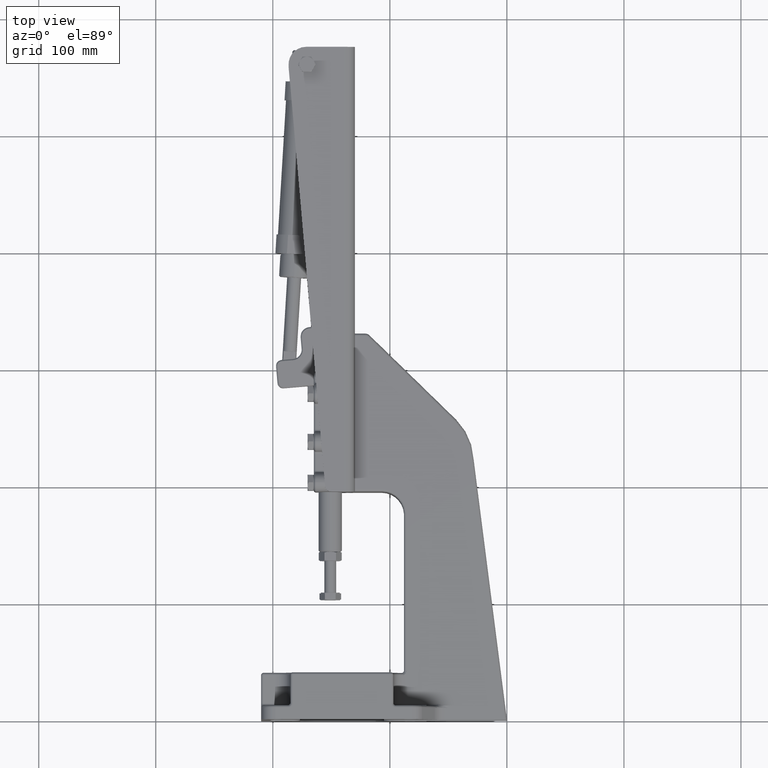
[diagram: clean part render]
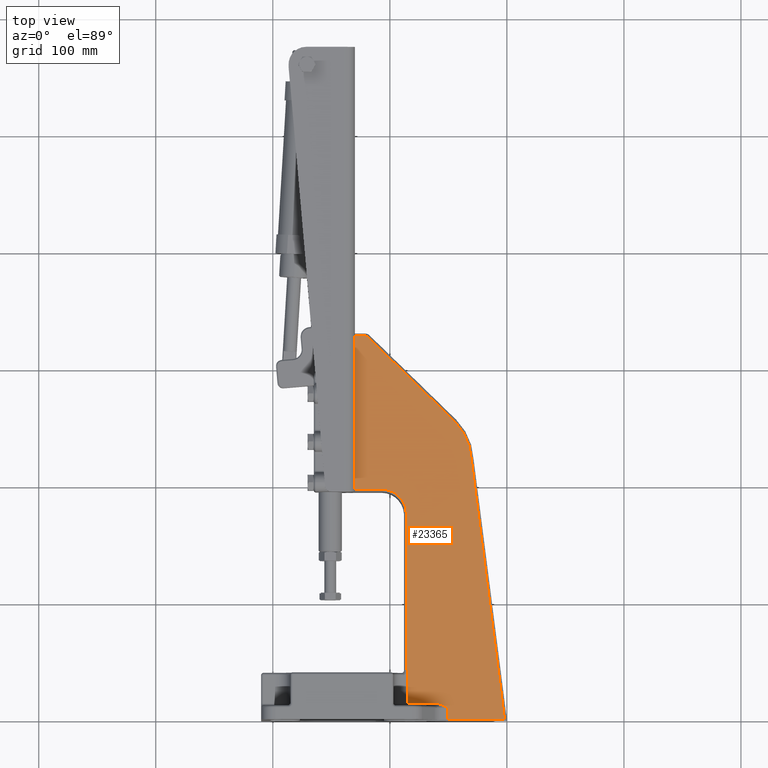
[diagram: same view with one face highlighted and labeled with its STEP entity id]
A machine part, top view. The second image highlights one B-rep face of the part: STEP entity #23365.
In plain terms, the highlighted planar face has unit normal (0, 0, 1).
Its self-contained STEP definition (entity closure, byte-faithful):
#398 = ORIENTED_EDGE ( 'NONE', *, *, #21312, .T. ) ;
#451 = CARTESIAN_POINT ( 'NONE',  ( -88.38031563271405800, 185.8328065265287100, 31.49999999999998600 ) ) ;
#594 = B_SPLINE_CURVE_WITH_KNOTS ( 'NONE', 3,
 ( #6938, #11108, #23663, #52876, #27864, #2917 ),
 .UNSPECIFIED., .F., .F.,
 ( 4, 2, 4 ),
 ( 0.0000000000000000000, 0.5000000000000000000, 1.000000000000000000 ),
 .UNSPECIFIED. ) ;
#636 = CARTESIAN_POINT ( 'NONE',  ( -86.46252350561057700, 180.7584487598640800, 31.49999999999998600 ) ) ;
#706 = CARTESIAN_POINT ( 'NONE',  ( -59.44456735642779000, 13.90085901942617300, 31.49999999999998600 ) ) ;
#888 = CARTESIAN_POINT ( 'NONE',  ( -55.71625794668985100, 12.75631586318144700, 31.49999999999999300 ) ) ;
#1068 = CARTESIAN_POINT ( 'NONE',  ( -54.11739179496922200, 11.96727210287326000, 31.49999999999998600 ) ) ;
#1101 = CARTESIAN_POINT ( 'NONE',  ( -50.78312163512967500, -5.474242942326741000E-007, 31.49999999999998600 ) ) ;
#1249 = CARTESIAN_POINT ( 'NONE',  ( -52.03791835438296700, 10.76950455612899500, 31.49999999999998600 ) ) ;
#1991 = DIRECTION ( 'NONE',  ( -0.1268357536256876400, 0.9919237327547939500, 0.0000000000000000000 ) ) ;
#2376 = ORIENTED_EDGE ( 'NONE', *, *, #39321, .T. ) ;
#2576 = CARTESIAN_POINT ( 'NONE',  ( -30.50762376073685900, 222.8175828215104000, 31.50000000000000000 ) ) ;
#2668 = CARTESIAN_POINT ( 'NONE',  ( -34.18274076805386800, 239.2686576783916100, 31.49999999999998600 ) ) ;
#2841 = CARTESIAN_POINT ( 'NONE',  ( -38.83806947739319100, 247.8758520536658800, 31.49999999999998600 ) ) ;
#2851 = CARTESIAN_POINT ( 'NONE',  ( -104.9698606205004000, 196.9025527644379000, 31.49999999999998600 ) ) ;
#2917 = CARTESIAN_POINT ( 'NONE',  ( -120.9864420214903000, 327.9999989999998900, 31.49999999999998600 ) ) ;
#3004 = ORIENTED_EDGE ( 'NONE', *, *, #8874, .F. ) ;
#3036 = CARTESIAN_POINT ( 'NONE',  ( -102.4507825866127700, 196.4999262708665500, 31.49999999999999300 ) ) ;
#3234 = CARTESIAN_POINT ( 'NONE',  ( -99.05751699953827900, 195.4415632806596100, 31.49999999999999300 ) ) ;
#3409 = CARTESIAN_POINT ( 'NONE',  ( -94.13404974175030300, 192.6270289281130500, 31.49999999999998600 ) ) ;
#3583 = CARTESIAN_POINT ( 'NONE',  ( -91.66205875845709300, 190.3814415711374900, 31.49999999999998600 ) ) ;
#3761 = CARTESIAN_POINT ( 'NONE',  ( -90.04268816004362500, 188.4483330521538300, 31.49999999999997900 ) ) ;
#4045 = VERTEX_POINT ( 'NONE', #35077 ) ;
#4071 = VERTEX_POINT ( 'NONE', #13230 ) ;
#4359 = CARTESIAN_POINT ( 'NONE',  ( -85.91846500000016800, 176.9938469761903000, 31.50000000000004300 ) ) ;
#4507 = VECTOR ( 'NONE', #16183, 1000.000000000000100 ) ;
#4670 = ORIENTED_EDGE ( 'NONE', *, *, #12389, .T. ) ;
#4687 = CARTESIAN_POINT ( 'NONE',  ( -87.69103715117634600, 184.4118875187221800, 31.49999999999998600 ) ) ;
#4855 = CARTESIAN_POINT ( 'NONE',  ( -86.42415945068370300, 180.5935428833564900, 31.49999999999999300 ) ) ;
#4913 = CARTESIAN_POINT ( 'NONE',  ( -58.87441864009971900, 13.80607237012994100, 31.49999999999999300 ) ) ;
#4924 = EDGE_CURVE ( 'NONE', #29632, #36295, #10565, .T. ) ;
#4993 = ORIENTED_EDGE ( 'NONE', *, *, #6628, .T. ) ;
#5109 = CARTESIAN_POINT ( 'NONE',  ( -55.57636201228049100, 12.69297857677240100, 31.49999999999998600 ) ) ;
#5289 = CARTESIAN_POINT ( 'NONE',  ( -53.47742632163903700, 11.61453299476295200, 31.49999999999998600 ) ) ;
#5472 = CARTESIAN_POINT ( 'NONE',  ( -51.96765935913781200, 10.72692442496945200, 31.49999999999998600 ) ) ;
#5494 = EDGE_CURVE ( 'NONE', #15078, #29632, #53026, .T. ) ;
#5642 = LINE ( 'NONE', #13940, #15358 ) ;
#5889 = VECTOR ( 'NONE', #41105, 1000.000000000000000 ) ;
#6415 = AXIS2_PLACEMENT_3D ( 'NONE', #19997, #49220, #24934 ) ;
#6628 = EDGE_CURVE ( 'NONE', #52626, #4071, #21796, .T. ) ;
#6700 = CARTESIAN_POINT ( 'NONE',  ( -30.77996669309368400, 226.5451844586741000, 31.49999999999997900 ) ) ;
#6870 = CARTESIAN_POINT ( 'NONE',  ( -34.58880522346810000, 240.2088924261622400, 31.49999999999998600 ) ) ;
#6875 = VERTEX_POINT ( 'NONE', #21362 ) ;
#6938 = CARTESIAN_POINT ( 'NONE',  ( -118.8943223730449700, 327.1501235025792200, 31.49999999999998600 ) ) ;
#7040 = CARTESIAN_POINT ( 'NONE',  ( -38.91306115180518100, 247.9859817744069800, 31.49999999999998600 ) ) ;
#7048 = CARTESIAN_POINT ( 'NONE',  ( -104.4013110661945900, 196.8373773178682000, 31.49999999999998600 ) ) ;
#7236 = CARTESIAN_POINT ( 'NONE',  ( -102.3924958622901000, 196.4869241028087900, 31.49999999999998600 ) ) ;
#7415 = CARTESIAN_POINT ( 'NONE',  ( -97.34750121827188700, 194.6814693358749700, 31.49999999999999300 ) ) ;
#7583 = CARTESIAN_POINT ( 'NONE',  ( -93.16016035676138100, 191.8188518752507200, 31.49999999999998600 ) ) ;
#7768 = CARTESIAN_POINT ( 'NONE',  ( -91.51737364796405000, 190.2264114669107800, 31.49999999999998600 ) ) ;
#7874 = EDGE_CURVE ( 'NONE', #4045, #52626, #8272, .T. ) ;
#7944 = CARTESIAN_POINT ( 'NONE',  ( -89.77169647377046100, 188.0818119535385900, 31.49999999999998600 ) ) ;
#8272 = LINE ( 'NONE', #35319, #51355 ) ;
#8839 = CARTESIAN_POINT ( 'NONE',  ( -87.44378575905805900, 183.8230177004551000, 31.49999999999999300 ) ) ;
#8874 = EDGE_CURVE ( 'NONE', #26696, #20915, #21152, .T. ) ;
#8891 = VECTOR ( 'NONE', #40052, 1000.000000000000000 ) ;
#9021 = CARTESIAN_POINT ( 'NONE',  ( -86.41322544366433100, 180.5456696870992600, 31.49999999999998600 ) ) ;
#9089 = CARTESIAN_POINT ( 'NONE',  ( -58.28264812224904300, 13.66773750707521300, 31.49999999999999300 ) ) ;
#9283 = CARTESIAN_POINT ( 'NONE',  ( -55.53243887021204700, 12.67288676402348500, 31.49999999999998600 ) ) ;
#9366 = CARTESIAN_POINT ( 'NONE',  ( -129.9185700000002200, 327.9999989999998900, 31.49999999999998600 ) ) ;
#9399 = CARTESIAN_POINT ( 'NONE',  ( -60.78312163512983100, 13.99999795481803700, 31.50000000000001400 ) ) ;
#9449 = CARTESIAN_POINT ( 'NONE',  ( -53.20603969203893500, 11.45989823960556300, 31.49999999999999300 ) ) ;
#9641 = CARTESIAN_POINT ( 'NONE',  ( -51.95083742263322100, 10.71671756264208900, 31.49999999999999300 ) ) ;
#10087 = VECTOR ( 'NONE', #42568, 1000.000000000000000 ) ;
#10565 = LINE ( 'NONE', #41077, #41239 ) ;
#10850 = CARTESIAN_POINT ( 'NONE',  ( -31.45360614003864100, 230.4107589140837400, 31.49999999999998600 ) ) ;
#11033 = CARTESIAN_POINT ( 'NONE',  ( -34.68808404199341300, 240.4319213135783300, 31.49999999999999300 ) ) ;
#11108 = CARTESIAN_POINT ( 'NONE',  ( -119.1729804774537100, 327.4219915539532100, 31.49999999999997900 ) ) ;
#11220 = CARTESIAN_POINT ( 'NONE',  ( -42.53993516127843600, 252.7971291095561000, 31.49999999999999300 ) ) ;
#11233 = CARTESIAN_POINT ( 'NONE',  ( -104.2593213758887600, 196.8190146024975600, 31.49999999999998600 ) ) ;
#11405 = CARTESIAN_POINT ( 'NONE',  ( -100.9666584927304300, 196.1287425003118600, 31.49999999999998600 ) ) ;
#11538 = DIRECTION ( 'NONE',  ( 0.0000000000000000000, 1.000000000000000000, 0.0000000000000000000 ) ) ;
#11578 = CARTESIAN_POINT ( 'NONE',  ( -95.66154019162593200, 193.6881932416238800, 31.49999999999998600 ) ) ;
#11762 = CARTESIAN_POINT ( 'NONE',  ( -92.92293004823943600, 191.6087883893010300, 31.49999999999999300 ) ) ;
#11949 = CARTESIAN_POINT ( 'NONE',  ( -91.48311090379138500, 190.1893075148090300, 31.49999999999999300 ) ) ;
#11977 = LINE ( 'NONE', #24801, #32796 ) ;
#12036 = CARTESIAN_POINT ( 'NONE',  ( -44.66113141188763100, 254.9195539749318900, 31.49999999999998600 ) ) ;
#12120 = CARTESIAN_POINT ( 'NONE',  ( -89.00162783189891500, 186.9095623970606300, 31.49999999999998600 ) ) ;
#12389 = EDGE_CURVE ( 'NONE', #53376, #51322, #28845, .T. ) ;
#13015 = CARTESIAN_POINT ( 'NONE',  ( -87.38711701340501700, 183.6817469526012300, 31.49999999999997900 ) ) ;
#13189 = CARTESIAN_POINT ( 'NONE',  ( -85.98230407433618400, 178.1859267591100600, 31.49999999999998600 ) ) ;
#13230 = CARTESIAN_POINT ( 'NONE',  ( -44.66113141188821300, 254.9195539749313800, 31.50000000000008900 ) ) ;
#13248 = CARTESIAN_POINT ( 'NONE',  ( -58.13954980037708300, 13.63036847381958700, 31.49999999999998600 ) ) ;
#13441 = CARTESIAN_POINT ( 'NONE',  ( -55.02635157944927600, 12.43496562082977500, 31.49999999999998600 ) ) ;
#13622 = CARTESIAN_POINT ( 'NONE',  ( -53.14050858865685700, 11.42221872028601100, 31.49999999999999300 ) ) ;
#13813 = CARTESIAN_POINT ( 'NONE',  ( -51.68668292942905400, 10.55637400269329800, 31.49999999999999300 ) ) ;
#13940 = CARTESIAN_POINT ( 'NONE',  ( -50.78312163512967500, 163.9999992526511800, 31.49999999999998600 ) ) ;
#14284 = VERTEX_POINT ( 'NONE', #47661 ) ;
#15018 = CARTESIAN_POINT ( 'NONE',  ( -31.66427756078523400, 231.3718755733503100, 31.49999999999999300 ) ) ;
#15044 = CARTESIAN_POINT ( 'NONE',  ( -84.50000000000012800, 163.9999992526511800, 31.49999999999998600 ) ) ;
#15078 = VERTEX_POINT ( 'NONE', #37737 ) ;
#15195 = CARTESIAN_POINT ( 'NONE',  ( -34.71884446275029700, 240.5005450276213400, 31.49999999999998600 ) ) ;
#15358 = VECTOR ( 'NONE', #47378, 1000.000000000000000 ) ;
#15367 = CARTESIAN_POINT ( 'NONE',  ( -104.2255229811112100, 196.8145210233014700, 31.50000000000000000 ) ) ;
#15539 = LINE ( 'NONE', #12036, #4507 ) ;
#15557 = CARTESIAN_POINT ( 'NONE',  ( -99.52812064614283800, 195.6275630967207100, 31.49999999999998600 ) ) ;
#15740 = CARTESIAN_POINT ( 'NONE',  ( -95.25168234434748600, 193.4184711958173800, 31.49999999999999300 ) ) ;
#15907 = CARTESIAN_POINT ( 'NONE',  ( -92.86401259846680000, 191.5557713163926200, 31.49999999999997900 ) ) ;
#16032 = DIRECTION ( 'NONE',  ( -0.0000000000000000000, -1.000000000000000000, -0.0000000000000000000 ) ) ;
#16085 = CARTESIAN_POINT ( 'NONE',  ( -91.21381247977629400, 189.8965995376064500, 31.49999999999999300 ) ) ;
#16183 = DIRECTION ( 'NONE',  ( -0.7167081675262685400, 0.6973732161483821000, 0.0000000000000000000 ) ) ;
#16912 = LINE ( 'NONE', #28485, #5889 ) ;
#17028 = CARTESIAN_POINT ( 'NONE',  ( -88.71339724352039000, 186.4211833115745400, 31.49999999999998600 ) ) ;
#17207 = CARTESIAN_POINT ( 'NONE',  ( -87.37089311169121700, 183.6408743160417300, 31.49999999999999300 ) ) ;
#17275 = CARTESIAN_POINT ( 'NONE',  ( -60.22303910024803000, 13.98708472712419700, 31.49999999999998600 ) ) ;
#17456 = CARTESIAN_POINT ( 'NONE',  ( -58.09472336692182600, 13.61837971919435300, 31.49999999999998600 ) ) ;
#17515 = CARTESIAN_POINT ( 'NONE',  ( -125.4525060107454000, 327.9999989999998900, 31.49999999999998600 ) ) ;
#17633 = CARTESIAN_POINT ( 'NONE',  ( -54.48628689090378400, 12.16105416109246700, 31.49999999999998600 ) ) ;
#17810 = CARTESIAN_POINT ( 'NONE',  ( -53.11964820074278000, 11.41019909824185200, 31.49999999999998600 ) ) ;
#17999 = CARTESIAN_POINT ( 'NONE',  ( -50.78312163512966700, 9.999997954310259700, 31.50000000000000700 ) ) ;
#19193 = CARTESIAN_POINT ( 'NONE',  ( -31.71691945093665800, 231.6004029567954200, 31.50000000000000000 ) ) ;
#19376 = CARTESIAN_POINT ( 'NONE',  ( -36.28707981447031700, 243.7551503812986200, 31.49999999999999300 ) ) ;
#19571 = CARTESIAN_POINT ( 'NONE',  ( -103.9035872261635500, 196.7713116605887600, 31.49999999999998600 ) ) ;
#19753 = CARTESIAN_POINT ( 'NONE',  ( -99.17284344505037600, 195.4881745265617500, 31.49999999999998600 ) ) ;
#19918 = ORIENTED_EDGE ( 'NONE', *, *, #5494, .T. ) ;
#19923 = CARTESIAN_POINT ( 'NONE',  ( -95.14994490811433500, 193.3497029954755000, 31.49999999999998600 ) ) ;
#19997 = CARTESIAN_POINT ( 'NONE',  ( -129.9185700000002200, -4.946975120000002900E-007, 31.49999999999998600 ) ) ;
#20110 = CARTESIAN_POINT ( 'NONE',  ( -92.85000754647687400, 191.5431187681564300, 31.49999999999999300 ) ) ;
#20297 = CARTESIAN_POINT ( 'NONE',  ( -90.42854775053533000, 188.9554033767148800, 31.49999999999999300 ) ) ;
#20551 = ORIENTED_EDGE ( 'NONE', *, *, #50192, .F. ) ;
#20915 = VERTEX_POINT ( 'NONE', #47583 ) ;
#21152 = LINE ( 'NONE', #17515, #10087 ) ;
#21215 = CARTESIAN_POINT ( 'NONE',  ( -88.64638074151869800, 186.3038436347413600, 31.49999999999997900 ) ) ;
#21312 = EDGE_CURVE ( 'NONE', #27379, #4045, #31553, .T. ) ;
#21362 = CARTESIAN_POINT ( 'NONE',  ( -50.78312163512966700, 9.999997954310259700, 31.50000000000000700 ) ) ;
#21402 = CARTESIAN_POINT ( 'NONE',  ( -86.89712702797172000, 182.3561701120257200, 31.49999999999998600 ) ) ;
#21468 = CARTESIAN_POINT ( 'NONE',  ( -59.62068445252880600, 13.92507228816644700, 31.49999999999998600 ) ) ;
#21646 = CARTESIAN_POINT ( 'NONE',  ( -57.05399305825605400, 13.30515311938243700, 31.49999999999998600 ) ) ;
#21796 = B_SPLINE_CURVE_WITH_KNOTS ( 'NONE', 3,
 ( #2576, #31648, #6700, #35800, #10850, #40031, #15018, #44258, #19193, #48430, #23419, #52635, #27610, #2668, #31741, #6870, #35984, #11033, #40210, #15195, #44435, #19376, #48593, #23599, #52806, #27788, #2841, #31929, #7040, #36148, #11220, #40404 ),
 .UNSPECIFIED., .F., .F.,
 ( 4, 1, 1, 1, 1, 1, 2, 2, 1, 1, 1, 1, 1, 1, 2, 2, 1, 1, 1, 1, 1, 2, 2, 4 ),
 ( 0.0000000000000000000, 0.1249999999999906700, 0.1874999999999860100, 0.2187499999999824600, 0.2343749999999806300, 0.2421874999999797700, 0.2460937499999781600, 0.2499999999999765200, 0.3749999999999549200, 0.4374999999999451000, 0.4687499999999402700, 0.4843749999999378800, 0.4921874999999367200, 0.4960937499999359400, 0.4980468749999356100, 0.4999999999999352200, 0.6249999999999065200, 0.6874999999998934200, 0.7187499999998858700, 0.7343749999998813200, 0.7421874999998797600, 0.7460937499998801000, 0.7499999999998803200, 1.000000000000000000 ),
 .UNSPECIFIED. ) ;
#21831 = CARTESIAN_POINT ( 'NONE',  ( -54.35548408248533300, 12.09274501753615300, 31.49999999999997900 ) ) ;
#21922 = ORIENTED_EDGE ( 'NONE', *, *, #4924, .T. ) ;
#22004 = CARTESIAN_POINT ( 'NONE',  ( -52.66292628763182600, 11.14434402765483700, 31.49999999999999300 ) ) ;
#22769 = CARTESIAN_POINT ( 'NONE',  ( -65.58372016529351400, 13.99999795431062000, 31.49999999999998600 ) ) ;
#23273 = CARTESIAN_POINT ( 'NONE',  ( -65.58372016529351400, 196.9996853245614800, 31.49999999999998600 ) ) ;
#23365 = ADVANCED_FACE ( 'NONE', ( #40820 ), #49044, .T. ) ;
#23419 = CARTESIAN_POINT ( 'NONE',  ( -32.09378694438765900, 233.2093155802132600, 31.49999999999999300 ) ) ;
#23599 = CARTESIAN_POINT ( 'NONE',  ( -38.23970381309778300, 246.9774444436328900, 31.49999999999999300 ) ) ;
#23663 = CARTESIAN_POINT ( 'NONE',  ( -119.4957499439265000, 327.6324780557098400, 31.49999999999998600 ) ) ;
#23772 = CARTESIAN_POINT ( 'NONE',  ( -102.9077233258537400, 196.5969182510328000, 31.49999999999999300 ) ) ;
#23956 = CARTESIAN_POINT ( 'NONE',  ( -99.08429647356196300, 195.4524465265681700, 31.49999999999998600 ) ) ;
#24130 = CARTESIAN_POINT ( 'NONE',  ( -95.12576440733926100, 193.3332510517607500, 31.49999999999998600 ) ) ;
#24152 = ORIENTED_EDGE ( 'NONE', *, *, #27970, .T. ) ;
#24265 = VECTOR ( 'NONE', #48283, 1000.000000000000000 ) ;
#24309 = CARTESIAN_POINT ( 'NONE',  ( -92.60494416898109200, 191.3214147352585100, 31.49999999999999300 ) ) ;
#24478 = CARTESIAN_POINT ( 'NONE',  ( -90.12734690523446100, 188.5619290317000300, 31.49999999999999300 ) ) ;
#24801 = CARTESIAN_POINT ( 'NONE',  ( -129.9185700000002200, 262.4998421622804000, 31.49999999999998600 ) ) ;
#24934 = DIRECTION ( 'NONE',  ( 1.000000000000000000, 0.0000000000000000000, 0.0000000000000000000 ) ) ;
#25405 = CARTESIAN_POINT ( 'NONE',  ( -88.62722255358909300, 186.2700480597214900, 31.49999999999998600 ) ) ;
#25588 = CARTESIAN_POINT ( 'NONE',  ( -86.51810367215291800, 180.9887314204491100, 31.49999999999998600 ) ) ;
#25649 = CARTESIAN_POINT ( 'NONE',  ( -59.47580511922501500, 13.90534401843152600, 31.49999999999998600 ) ) ;
#25823 = CARTESIAN_POINT ( 'NONE',  ( -55.91105173329585700, 12.84269546018188600, 31.49999999999998600 ) ) ;
#26011 = CARTESIAN_POINT ( 'NONE',  ( -54.31453030830710600, 12.07121612515951300, 31.49999999999999300 ) ) ;
#26201 = CARTESIAN_POINT ( 'NONE',  ( -52.13060531506344100, 10.82554983576224900, 31.49999999999999300 ) ) ;
#26696 = VERTEX_POINT ( 'NONE', #9366 ) ;
#27233 = ORIENTED_EDGE ( 'NONE', *, *, #27589, .T. ) ;
#27379 = VERTEX_POINT ( 'NONE', #1101 ) ;
#27589 = EDGE_CURVE ( 'NONE', #46732, #20915, #594, .T. ) ;
#27610 = CARTESIAN_POINT ( 'NONE',  ( -33.66864894893106500, 238.0062081464697300, 31.49999999999997900 ) ) ;
#27754 = ORIENTED_EDGE ( 'NONE', *, *, #48120, .T. ) ;
#27788 = CARTESIAN_POINT ( 'NONE',  ( -38.76227013495866200, 247.7641027947098800, 31.49999999999999300 ) ) ;
#27795 = CARTESIAN_POINT ( 'NONE',  ( -106.8190105385982100, 196.9996853245614300, 31.49999999999997200 ) ) ;
#27864 = CARTESIAN_POINT ( 'NONE',  ( -120.5953443302291000, 327.9999286384208400, 31.49999999999998600 ) ) ;
#27970 = EDGE_CURVE ( 'NONE', #6875, #27379, #5642, .T. ) ;
#27980 = CARTESIAN_POINT ( 'NONE',  ( -102.5078208563152900, 196.5125371259715300, 31.49999999999999300 ) ) ;
#28170 = CARTESIAN_POINT ( 'NONE',  ( -99.06322985521555300, 195.4438881270050100, 31.49999999999999300 ) ) ;
#28339 = CARTESIAN_POINT ( 'NONE',  ( -94.71719065603842600, 193.0546290365591300, 31.49999999999999300 ) ) ;
#28485 = CARTESIAN_POINT ( 'NONE',  ( -65.58372016529351400, 41.99999795431143200, 31.49999999999998600 ) ) ;
#28518 = CARTESIAN_POINT ( 'NONE',  ( -91.85694380479903000, 190.5861139759790000, 31.49999999999998600 ) ) ;
#28695 = CARTESIAN_POINT ( 'NONE',  ( -90.05675888981453200, 188.4672985234129200, 31.49999999999998600 ) ) ;
#28845 = LINE ( 'NONE', #22769, #39958 ) ;
#29318 = CARTESIAN_POINT ( 'NONE',  ( -30.50762376073685900, 222.8175828215104000, 31.50000000000000000 ) ) ;
#29598 = CARTESIAN_POINT ( 'NONE',  ( -88.04386401767149600, 185.1858539845882800, 31.49999999999999300 ) ) ;
#29632 = VERTEX_POINT ( 'NONE', #4359 ) ;
#29761 = CARTESIAN_POINT ( 'NONE',  ( -86.43554667870664300, 180.6430528354300400, 31.49999999999997900 ) ) ;
#29829 = CARTESIAN_POINT ( 'NONE',  ( -59.20264846037403600, 13.86513151928377900, 31.49999999999997900 ) ) ;
#30002 = CARTESIAN_POINT ( 'NONE',  ( -55.61839995705329900, 12.71212928034548300, 31.49999999999997900 ) ) ;
#30180 = CARTESIAN_POINT ( 'NONE',  ( -53.82964365068681900, 11.81164436158818500, 31.49999999999998600 ) ) ;
#30353 = CARTESIAN_POINT ( 'NONE',  ( -51.99114985990859600, 10.74116981834974500, 31.49999999999998600 ) ) ;
#30484 = EDGE_CURVE ( 'NONE', #36295, #34092, #16912, .T. ) ;
#30692 = ORIENTED_EDGE ( 'NONE', *, *, #30484, .T. ) ;
#31553 = LINE ( 'NONE', #39847, #41426 ) ;
#31648 = CARTESIAN_POINT ( 'NONE',  ( -30.57534585137883800, 224.3137697636356900, 31.49999999999997900 ) ) ;
#31741 = CARTESIAN_POINT ( 'NONE',  ( -34.45149844394221400, 239.8961096436835900, 31.49999999999999300 ) ) ;
#31929 = CARTESIAN_POINT ( 'NONE',  ( -38.88871161146767000, 247.9502915114952700, 31.49999999999998600 ) ) ;
#31937 = CARTESIAN_POINT ( 'NONE',  ( -104.5907225544151800, 196.8605736515981400, 31.49999999999998600 ) ) ;
#32120 = CARTESIAN_POINT ( 'NONE',  ( -102.4127657072413200, 196.4914660428282800, 31.49999999999999300 ) ) ;
#32300 = CARTESIAN_POINT ( 'NONE',  ( -98.36053913258031400, 195.1577361138733700, 31.49999999999998600 ) ) ;
#32486 = CARTESIAN_POINT ( 'NONE',  ( -93.48035136937528500, 192.0939467845934700, 31.49999999999998600 ) ) ;
#32683 = CARTESIAN_POINT ( 'NONE',  ( -91.56546119200811500, 190.2782334826621300, 31.49999999999998600 ) ) ;
#32796 = VECTOR ( 'NONE', #11538, 1000.000000000000000 ) ;
#32856 = CARTESIAN_POINT ( 'NONE',  ( -90.03666959956865400, 188.4402090491360000, 31.49999999999998600 ) ) ;
#33787 = CARTESIAN_POINT ( 'NONE',  ( -87.52454872235908600, 184.0201071607218900, 31.49999999999998600 ) ) ;
#33853 = CARTESIAN_POINT ( 'NONE',  ( -60.78312163512983100, 13.99999795481803700, 31.50000000000001400 ) ) ;
#33965 = CARTESIAN_POINT ( 'NONE',  ( -86.41660669182871900, 180.5605241251101600, 31.49999999999999300 ) ) ;
#34040 = CARTESIAN_POINT ( 'NONE',  ( -58.48155908842505100, 13.71718068543017600, 31.49999999999999300 ) ) ;
#34092 = VERTEX_POINT ( 'NONE', #35399 ) ;
#34220 = CARTESIAN_POINT ( 'NONE',  ( -55.54831475879701900, 12.68016397513627100, 31.49999999999997900 ) ) ;
#34406 = CARTESIAN_POINT ( 'NONE',  ( -53.29718986693558200, 11.51209089418549800, 31.49999999999999300 ) ) ;
#34576 = CARTESIAN_POINT ( 'NONE',  ( -51.95756923305028600, 10.72080253684419700, 31.49999999999998600 ) ) ;
#35077 = CARTESIAN_POINT ( 'NONE',  ( -2.016284015936750300, -2.571694482071812200E-007, 31.49999999999998600 ) ) ;
#35319 = CARTESIAN_POINT ( 'NONE',  ( -2.016284046309019500, -1.964199273185002100E-008, 31.49999999999998600 ) ) ;
#35399 = CARTESIAN_POINT ( 'NONE',  ( -84.50000000000008500, 41.99999795431099200, 31.49999999999997900 ) ) ;
#35800 = CARTESIAN_POINT ( 'NONE',  ( -31.19900699353851800, 229.1259865966526900, 31.49999999999998600 ) ) ;
#35984 = CARTESIAN_POINT ( 'NONE',  ( -34.65819059862651800, 240.3650480173597300, 31.49999999999998600 ) ) ;
#36148 = CARTESIAN_POINT ( 'NONE',  ( -40.63273055872233600, 250.4988247502830600, 31.49999999999999300 ) ) ;
#36158 = CARTESIAN_POINT ( 'NONE',  ( -104.3066447082897500, 196.8252274566756300, 31.49999999999998600 ) ) ;
#36295 = VERTEX_POINT ( 'NONE', #39404 ) ;
#36342 = CARTESIAN_POINT ( 'NONE',  ( -101.8072710977177000, 196.3549975287543200, 31.49999999999999300 ) ) ;
#36528 = CARTESIAN_POINT ( 'NONE',  ( -96.21525526494660600, 194.0345051999698300, 31.49999999999998600 ) ) ;
#36696 = CARTESIAN_POINT ( 'NONE',  ( -93.00172939384783900, 191.6791659611835700, 31.49999999999998600 ) ) ;
#36873 = CARTESIAN_POINT ( 'NONE',  ( -91.49680996605530900, 190.2041553234072600, 31.49999999999998600 ) ) ;
#37037 = EDGE_CURVE ( 'NONE', #34092, #53376, #53295, .T. ) ;
#37049 = CARTESIAN_POINT ( 'NONE',  ( -89.40287629776422300, 187.5495907435274000, 31.49999999999998600 ) ) ;
#37737 = CARTESIAN_POINT ( 'NONE',  ( -106.8190105385982100, 196.9996853245614300, 31.49999999999997200 ) ) ;
#38002 = CARTESIAN_POINT ( 'NONE',  ( -87.40402459018439200, 183.7241731500048200, 31.49999999999998600 ) ) ;
#38177 = CARTESIAN_POINT ( 'NONE',  ( -86.14585308190758900, 179.3638068275697600, 31.49999999999998600 ) ) ;
#38246 = CARTESIAN_POINT ( 'NONE',  ( -58.18257234157636000, 13.64176658389647500, 31.49999999999999300 ) ) ;
#38429 = CARTESIAN_POINT ( 'NONE',  ( -55.32496576424662700, 12.57754074414742200, 31.50000000000000000 ) ) ;
#38623 = CARTESIAN_POINT ( 'NONE',  ( -53.16020661770441800, 11.43355901124279100, 31.49999999999998600 ) ) ;
#38786 = CARTESIAN_POINT ( 'NONE',  ( -51.94610907809404000, 10.71384774192276800, 31.49999999999998600 ) ) ;
#39278 = CARTESIAN_POINT ( 'NONE',  ( -118.8943223730449700, 327.1501235025792200, 31.49999999999998600 ) ) ;
#39321 = EDGE_CURVE ( 'NONE', #14284, #15078, #46524, .T. ) ;
#39404 = CARTESIAN_POINT ( 'NONE',  ( -85.91846500000011100, 41.99999795431112700, 31.50000000000002800 ) ) ;
#39847 = CARTESIAN_POINT ( 'NONE',  ( -65.58372016529351400, -4.946975120000002900E-007, 31.49999999999998600 ) ) ;
#39958 = VECTOR ( 'NONE', #47813, 1000.000000000000000 ) ;
#40031 = CARTESIAN_POINT ( 'NONE',  ( -31.59217546235813900, 231.0517378849097300, 31.49999999999997900 ) ) ;
#40052 = DIRECTION ( 'NONE',  ( -0.0000000000000000000, -1.000000000000000000, -0.0000000000000000000 ) ) ;
#40210 = CARTESIAN_POINT ( 'NONE',  ( -34.70804786068539000, 240.4764922824838300, 31.49999999999997900 ) ) ;
#40404 = CARTESIAN_POINT ( 'NONE',  ( -44.66113141188821300, 254.9195539749313800, 31.50000000000008900 ) ) ;
#40412 = CARTESIAN_POINT ( 'NONE',  ( -104.2390420576921700, 196.8163223956536300, 31.49999999999998600 ) ) ;
#40584 = CARTESIAN_POINT ( 'NONE',  ( -100.0045347652776800, 195.8046450982812700, 31.49999999999998600 ) ) ;
#40670 = EDGE_LOOP ( 'NONE', ( #2376, #19918, #21922, #30692, #52328, #4670, #27754, #24152, #398, #45129, #4993, #47052, #27233, #3004, #20551 ) ) ;
#40767 = CARTESIAN_POINT ( 'NONE',  ( -95.38778463080103600, 193.5093297898525300, 31.49999999999998600 ) ) ;
#40820 = FACE_OUTER_BOUND ( 'NONE', #40670, .T. ) ;
#40948 = CARTESIAN_POINT ( 'NONE',  ( -92.88363440939728800, 191.5734659496474400, 31.49999999999998600 ) ) ;
#41077 = CARTESIAN_POINT ( 'NONE',  ( -85.91846500000008300, 163.9999992526511800, 31.49999999999998600 ) ) ;
#41105 = DIRECTION ( 'NONE',  ( 1.000000000000000000, 0.0000000000000000000, 0.0000000000000000000 ) ) ;
#41138 = CARTESIAN_POINT ( 'NONE',  ( -91.47741488161112500, 190.1831267805423200, 31.49999999999999300 ) ) ;
#41239 = VECTOR ( 'NONE', #16032, 1000.000000000000000 ) ;
#41426 = VECTOR ( 'NONE', #48071, 1000.000000000000000 ) ;
#42045 = CARTESIAN_POINT ( 'NONE',  ( -88.80826403383508700, 186.5847723234638200, 31.49999999999999300 ) ) ;
#42238 = CARTESIAN_POINT ( 'NONE',  ( -87.37587483425585300, 183.6534485438408800, 31.49999999999999300 ) ) ;
#42305 = CARTESIAN_POINT ( 'NONE',  ( -60.56060548348593600, 13.99998387255141600, 31.49999999999999300 ) ) ;
#42428 = CARTESIAN_POINT ( 'NONE',  ( -85.91846500000016800, 176.9938469761903000, 31.50000000000004300 ) ) ;
#42502 = CARTESIAN_POINT ( 'NONE',  ( -58.11083856826400800, 13.62271024167304000, 31.49999999999998600 ) ) ;
#42568 = DIRECTION ( 'NONE',  ( 1.000000000000000000, -0.0000000000000000000, -0.0000000000000000000 ) ) ;
#42677 = CARTESIAN_POINT ( 'NONE',  ( -54.66797415519516100, 12.25468226614123200, 31.49999999999998600 ) ) ;
#42847 = CARTESIAN_POINT ( 'NONE',  ( -53.12736428420198800, 11.41464695959706100, 31.49999999999998600 ) ) ;
#43034 = CARTESIAN_POINT ( 'NONE',  ( -51.29969080024628200, 10.31883098237612400, 31.49999999999999300 ) ) ;
#44258 = CARTESIAN_POINT ( 'NONE',  ( -31.69578219666844300, 231.5090020547593800, 31.49999999999997900 ) ) ;
#44435 = CARTESIAN_POINT ( 'NONE',  ( -35.31811204713448400, 241.8331347866415200, 31.49999999999998600 ) ) ;
#44617 = CARTESIAN_POINT ( 'NONE',  ( -104.2168236294442800, 196.8133566451816700, 31.49999999999999300 ) ) ;
#44798 = CARTESIAN_POINT ( 'NONE',  ( -99.29107552272323300, 195.5352637708041100, 31.49999999999998600 ) ) ;
#44991 = CARTESIAN_POINT ( 'NONE',  ( -95.18382507461046800, 193.3726851817623900, 31.49999999999999300 ) ) ;
#45129 = ORIENTED_EDGE ( 'NONE', *, *, #7874, .T. ) ;
#45173 = CARTESIAN_POINT ( 'NONE',  ( -92.85560882417307500, 191.5481807421203400, 31.49999999999998600 ) ) ;
#45349 = CARTESIAN_POINT ( 'NONE',  ( -90.84200328968675800, 189.4700791374824300, 31.49999999999999300 ) ) ;
#46269 = CARTESIAN_POINT ( 'NONE',  ( -88.66641762554229400, 186.3390903118571800, 31.49999999999998600 ) ) ;
#46452 = CARTESIAN_POINT ( 'NONE',  ( -87.16576021022815700, 183.1212696250030900, 31.50000000000000000 ) ) ;
#46516 = CARTESIAN_POINT ( 'NONE',  ( -59.82257538053546900, 13.94949919014856800, 31.49999999999997900 ) ) ;
#46524 = LINE ( 'NONE', #23273, #24265 ) ;
#46688 = CARTESIAN_POINT ( 'NONE',  ( -57.67759222146083400, 13.50562044143752000, 31.49999999999998600 ) ) ;
#46732 = VERTEX_POINT ( 'NONE', #39278 ) ;
#46871 = CARTESIAN_POINT ( 'NONE',  ( -54.39481862071706100, 12.11336850164196100, 31.49999999999997200 ) ) ;
#47052 = ORIENTED_EDGE ( 'NONE', *, *, #47982, .T. ) ;
#47058 = CARTESIAN_POINT ( 'NONE',  ( -52.93990879594024100, 11.30653786769978800, 31.49999999999998600 ) ) ;
#47378 = DIRECTION ( 'NONE',  ( -0.0000000000000000000, -1.000000000000000000, -0.0000000000000000000 ) ) ;
#47583 = CARTESIAN_POINT ( 'NONE',  ( -120.9864420214903000, 327.9999989999998900, 31.49999999999998600 ) ) ;
#47661 = CARTESIAN_POINT ( 'NONE',  ( -129.9185700000002400, 196.9996853245613700, 31.49999999999998600 ) ) ;
#47813 = DIRECTION ( 'NONE',  ( 1.000000000000000000, 0.0000000000000000000, 0.0000000000000000000 ) ) ;
#47982 = EDGE_CURVE ( 'NONE', #4071, #46732, #15539, .T. ) ;
#48071 = DIRECTION ( 'NONE',  ( 1.000000000000000000, 0.0000000000000000000, 0.0000000000000000000 ) ) ;
#48120 = EDGE_CURVE ( 'NONE', #51322, #6875, #53219, .T. ) ;
#48283 = DIRECTION ( 'NONE',  ( 1.000000000000000000, 0.0000000000000000000, 0.0000000000000000000 ) ) ;
#48430 = CARTESIAN_POINT ( 'NONE',  ( -31.72714766967193300, 231.6443557039217500, 31.49999999999999300 ) ) ;
#48593 = CARTESIAN_POINT ( 'NONE',  ( -37.56435958443245900, 245.9167972065038400, 31.49999999999999300 ) ) ;
#48603 = CARTESIAN_POINT ( 'NONE',  ( -105.7293971112469000, 196.9688567716366100, 31.49999999999999300 ) ) ;
#48789 = CARTESIAN_POINT ( 'NONE',  ( -103.4426188362271500, 196.6990401226532300, 31.49999999999999300 ) ) ;
#48970 = CARTESIAN_POINT ( 'NONE',  ( -99.11380002722324900, 195.4643950091195600, 31.49999999999999300 ) ) ;
#49044 = PLANE ( 'NONE',  #6415 ) ;
#49151 = CARTESIAN_POINT ( 'NONE',  ( -95.13543522283866600, 193.3398343772255400, 31.49999999999998600 ) ) ;
#49220 = DIRECTION ( 'NONE',  ( 0.0000000000000000000, 0.0000000000000000000, 1.000000000000000000 ) ) ;
#49331 = CARTESIAN_POINT ( 'NONE',  ( -92.84814975086661100, 191.5414394023982300, 31.49999999999997900 ) ) ;
#49525 = CARTESIAN_POINT ( 'NONE',  ( -90.22690044328112400, 188.6937983395086200, 31.49999999999997900 ) ) ;
#50192 = EDGE_CURVE ( 'NONE', #14284, #26696, #11977, .T. ) ;
#50429 = CARTESIAN_POINT ( 'NONE',  ( -88.63304442727343300, 186.2803316360082400, 31.49999999999998600 ) ) ;
#50621 = CARTESIAN_POINT ( 'NONE',  ( -86.63577005617538900, 181.4472599884856300, 31.49999999999998600 ) ) ;
#50681 = CARTESIAN_POINT ( 'NONE',  ( -59.53380425449369500, 13.91339630156819000, 31.49999999999998600 ) ) ;
#50880 = CARTESIAN_POINT ( 'NONE',  ( -56.29695053583992600, 13.00748037949674600, 31.49999999999999300 ) ) ;
#51026 = CARTESIAN_POINT ( 'NONE',  ( -84.50000000000009900, 13.99999795431066300, 31.49999999999998600 ) ) ;
#51054 = CARTESIAN_POINT ( 'NONE',  ( -54.32923131232893600, 12.07895452304055800, 31.50000000000000000 ) ) ;
#51228 = CARTESIAN_POINT ( 'NONE',  ( -52.31257912335087200, 10.93514361132777400, 31.49999999999999300 ) ) ;
#51322 = VERTEX_POINT ( 'NONE', #9399 ) ;
#51355 = VECTOR ( 'NONE', #1991, 1000.000000000000100 ) ;
#52328 = ORIENTED_EDGE ( 'NONE', *, *, #37037, .T. ) ;
#52626 = VERTEX_POINT ( 'NONE', #29318 ) ;
#52635 = CARTESIAN_POINT ( 'NONE',  ( -32.73415944130104500, 235.4511266772730100, 31.49999999999999300 ) ) ;
#52806 = CARTESIAN_POINT ( 'NONE',  ( -38.58655201335152900, 247.5027240183289100, 31.49999999999998600 ) ) ;
#52818 = CARTESIAN_POINT ( 'NONE',  ( -106.3825890037315200, 196.9954244032685200, 31.49999999999999300 ) ) ;
#52876 = CARTESIAN_POINT ( 'NONE',  ( -120.2189863764641600, 327.9264103772469500, 31.49999999999997900 ) ) ;
#52998 = CARTESIAN_POINT ( 'NONE',  ( -102.6410008068051100, 196.5414060458819800, 31.49999999999998600 ) ) ;
#53026 = B_SPLINE_CURVE_WITH_KNOTS ( 'NONE', 3,
 ( #27795, #52818, #48603, #2851, #31937, #7048, #36158, #11233, #40412, #15367, #44617, #19571, #48789, #23772, #52998, #27980, #3036, #32120, #7236, #36342, #11405, #40584, #15557, #44798, #19753, #48970, #23956, #53172, #28170, #3234, #32300, #7415, #36528, #11578, #40767, #15740, #44991, #19923, #49151, #24130, #53359, #28339, #3409, #32486, #7583, #36696, #11762, #40948, #15907, #45173, #20110, #49331, #24309, #53537, #28518, #3583, #32683, #7768, #36873, #11949, #41138, #16085, #45349, #20297, #49525, #24478, #53718, #28695, #3761, #32856, #7944, #37049, #12120, #42045, #17028, #46269, #21215, #50429, #25405, #451, #29598, #4687, #33787, #8839, #38002, #13015, #42238, #17207, #46452, #21402, #50621, #25588, #636, #29761, #4855, #33965, #9021, #38177, #13189, #42428 ),
 .UNSPECIFIED., .F., .F.,
 ( 4, 1, 1, 1, 1, 1, 1, 2, 2, 1, 1, 1, 1, 2, 2, 1, 1, 1, 1, 1, 1, 1, 2, 2, 1, 1, 1, 1, 1, 1, 1, 2, 2, 1, 1, 1, 1, 1, 1, 1, 2, 2, 1, 1, 1, 1, 1, 2, 2, 1, 1, 1, 1, 1, 2, 2, 1, 1, 1, 1, 1, 2, 2, 1, 1, 1, 1, 1, 2, 2, 1, 1, 1, 1, 1, 2, 2, 4 ),
 ( 0.0000000000000000000, 0.03125000000003396600, 0.04687500000005102200, 0.05468750000005894600, 0.05859375000006302600, 0.06054687500006506600, 0.06152343750006657900, 0.06201171875006684900, 0.06250000000006711300, 0.09375000000010996800, 0.1093750000001311300, 0.1171875000001417200, 0.1210937500001463300, 0.1230468750001479500, 0.1250000000001495700, 0.1875000000001816600, 0.2187500000001981700, 0.2343750000002069500, 0.2421875000002113300, 0.2460937500002135200, 0.2480468750002146300, 0.2490234375002157400, 0.2495117187502161600, 0.2500000000002165500, 0.3750000000002660600, 0.4375000000002919300, 0.4687500000003036500, 0.4843750000003095300, 0.4921875000003121400, 0.4960937500003138000, 0.4980468750003149700, 0.4990234375003155300, 0.5000000000003160800, 0.5625000000003839200, 0.5937500000004182200, 0.6093750000004361000, 0.6171875000004460900, 0.6210937500004511900, 0.6230468750004537500, 0.6240234375004561900, 0.6245117187504567500, 0.6250000000004573000, 0.6562500000004455300, 0.6718750000004387600, 0.6796875000004357600, 0.6835937500004357600, 0.6855468750004348700, 0.6865234375004328800, 0.6875000000004309900, 0.7187500000004083400, 0.7343750000003970200, 0.7421875000003912400, 0.7460937500003883600, 0.7480468750003881300, 0.7490234375003875800, 0.7500000000003869100, 0.7812500000003367300, 0.7968750000003116400, 0.8046875000002992100, 0.8085937500002937700, 0.8105468750002898800, 0.8115234375002874400, 0.8125000000002848800, 0.8437500000001951800, 0.8593750000001495500, 0.8671875000001277900, 0.8710937500001170200, 0.8730468750001114700, 0.8740234375001086900, 0.8750000000001058000, 0.9062500000000611700, 0.9218750000000388600, 0.9296875000000278700, 0.9335937500000216500, 0.9355468750000192100, 0.9365234375000179900, 0.9375000000000166500, 1.000000000000000000 ),
 .UNSPECIFIED. ) ;
#53172 = CARTESIAN_POINT ( 'NONE',  ( -99.07165598383258500, 195.4473131646539300, 31.49999999999998600 ) ) ;
#53219 = B_SPLINE_CURVE_WITH_KNOTS ( 'NONE', 3,
 ( #33853, #42305, #17275, #46516, #21468, #50681, #25649, #706, #29829, #4913, #34040, #9089, #38246, #13248, #42502, #17456, #46688, #21646, #50880, #25823, #888, #30002, #5109, #34220, #9283, #38429, #13441, #42677, #17633, #46871, #21831, #51054, #26011, #1068, #30180, #5289, #34406, #9449, #38623, #13622, #42847, #17810, #47058, #22004, #51228, #26201, #1249, #30353, #5472, #34576, #9641, #38786, #13813, #43034, #17999 ),
 .UNSPECIFIED., .F., .F.,
 ( 4, 1, 1, 1, 2, 2, 1, 1, 1, 1, 2, 2, 1, 1, 1, 1, 1, 2, 2, 1, 1, 1, 1, 2, 2, 1, 1, 1, 1, 1, 2, 2, 1, 1, 1, 1, 1, 1, 2, 2, 4 ),
 ( 0.0000000000000000000, 0.06249999999999339400, 0.09374999999999010500, 0.1093749999999884400, 0.1171874999999876100, 0.1249999999999867600, 0.1874999999999757700, 0.2187499999999702200, 0.2343749999999674700, 0.2421874999999670300, 0.2460937499999668600, 0.2499999999999666900, 0.3749999999999294500, 0.4374999999999100200, 0.4687499999999011900, 0.4843749999998966400, 0.4921874999998942500, 0.4960937499998930300, 0.4999999999998918600, 0.5624999999998776500, 0.5937499999998706600, 0.6093749999998672200, 0.6171874999998654400, 0.6210937499998653300, 0.6249999999998651100, 0.6874999999998550000, 0.7187499999998506800, 0.7343749999998483400, 0.7421874999998462300, 0.7460937499998452300, 0.7480468749998455700, 0.7499999999998459000, 0.8124999999998775400, 0.8437499999998932000, 0.8593749999999018600, 0.8671874999999059600, 0.8710937499999080700, 0.8730468749999089600, 0.8740234374999101800, 0.8749999999999114000, 1.000000000000000000 ),
 .UNSPECIFIED. ) ;
#53295 = LINE ( 'NONE', #15044, #8891 ) ;
#53359 = CARTESIAN_POINT ( 'NONE',  ( -95.12232996633254300, 193.3309118613457300, 31.49999999999997900 ) ) ;
#53376 = VERTEX_POINT ( 'NONE', #51026 ) ;
#53537 = CARTESIAN_POINT ( 'NONE',  ( -92.25347355125825300, 190.9884836972251800, 31.49999999999998600 ) ) ;
#53718 = CARTESIAN_POINT ( 'NONE',  ( -90.07788766510624600, 188.4957276804942100, 31.49999999999998600 ) ) ;